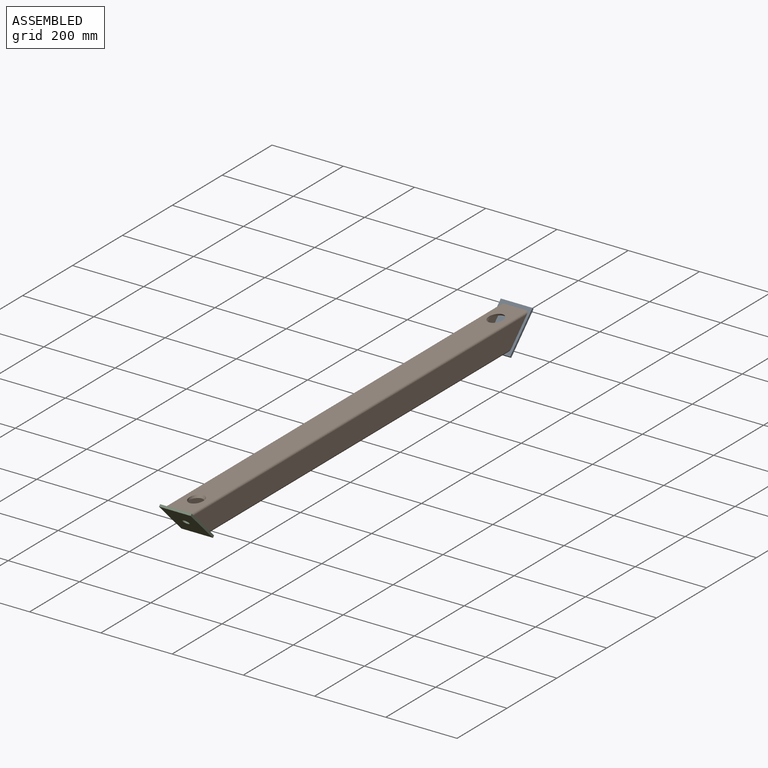
[diagram: assembled view]
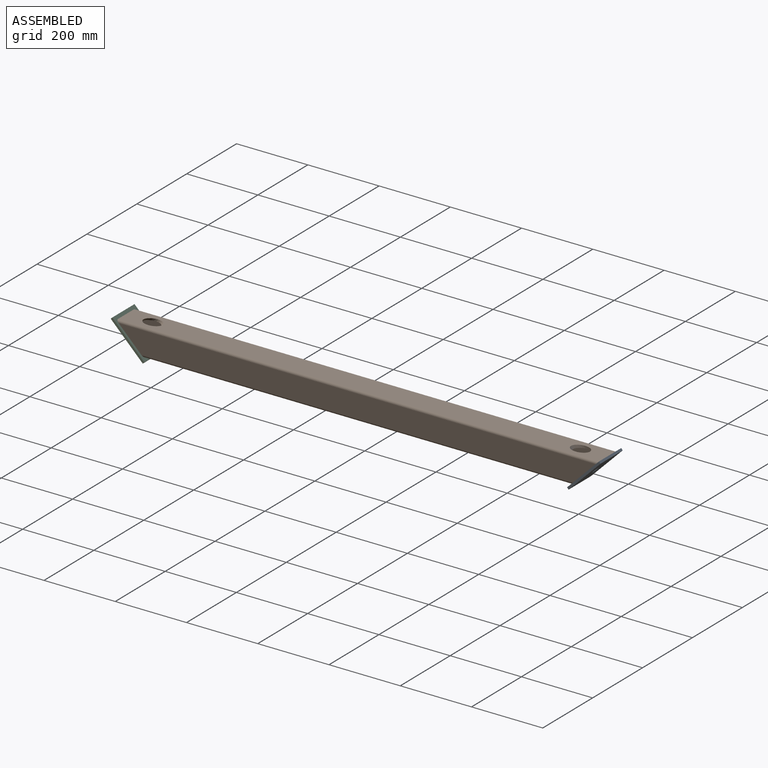
[diagram: assembled view, second angle]
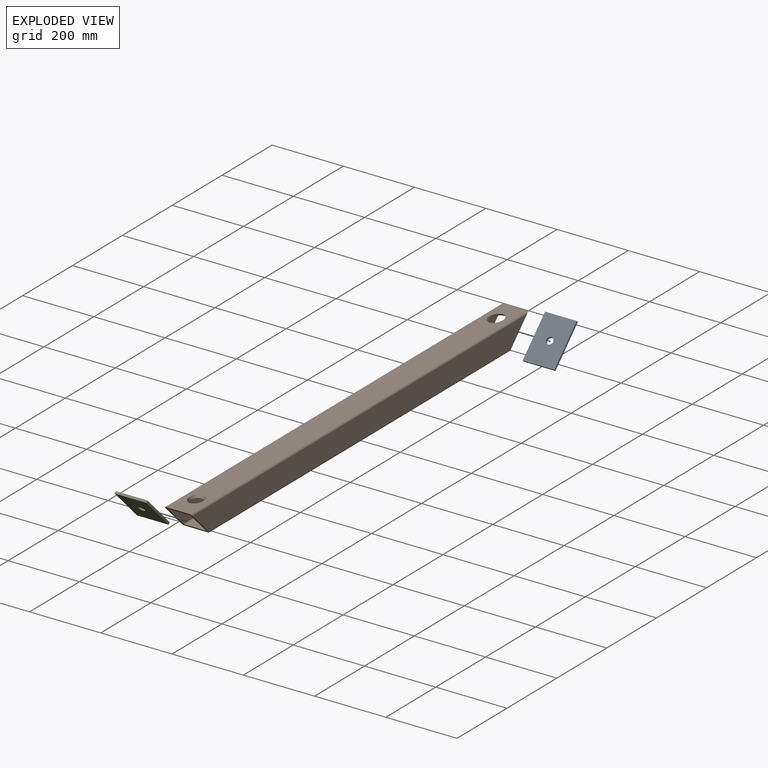
[diagram: exploded view]
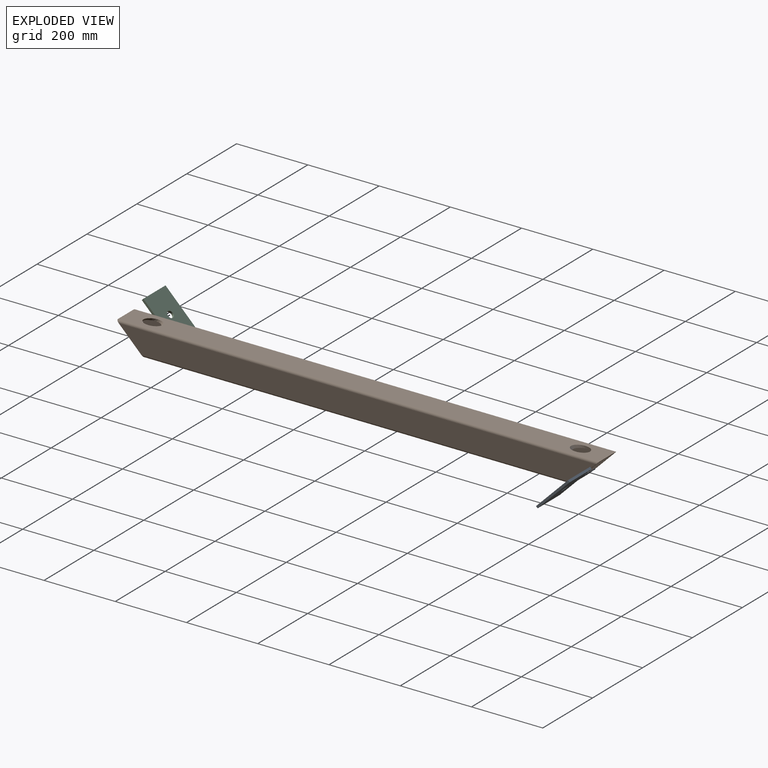
[diagram: exploded view, second angle]
ASSEMBLY  parts=3 mates=6
PART A: 7 faces, bbox 88.9x6.4x127 mm
  f0: plane 88.9x6.35mm, normal (0,0,1), area 564.5mm2, adj f1,f3,f4,f5
  f1: plane 127x6.35mm, normal (-1,0,0), area 806.5mm2, adj f0,f2,f4,f5
  f2: plane 88.9x6.35mm, normal (0,0,-1), area 564.5mm2, adj f1,f3,f4,f5
  f3: plane 127x6.35mm, normal (1,0,0), area 806.5mm2, adj f0,f2,f4,f5
  f4: plane 127x88.9mm, normal (0,-1,0), area 11005.3mm2, adj f0,f1,f2,f3,f6
  f5: plane 127x88.9mm, normal (0,1,0), area 11005.3mm2, adj f0,f1,f2,f3,f6
  f6: cylinder r=9.53mm len=19.05mm, axis (0,-1,0), area 380mm2, adj f4,f5
PART B: 16 faces, bbox 76.2x1352.5x103.3 mm
  f0: plane 1352.45x63.5mm, normal (0,0,1), area 82656.1mm2, adj f3,f6,f12,f13,f14,f15
  f1: plane 1200.05x63.5mm, normal (0,0,-1), area 76203.4mm2, adj f4,f5,f12,f13
  f2: plane 1339.75x63.5mm, normal (1,0,0), area 81042.1mm2, adj f5,f6,f12,f13
  f3: cylinder r=6.35mm len=1352.45mm, axis (0,-1,0), area 13444.1mm2, adj f0,f11,f12,f13
  f4: cylinder r=6.35mm len=1212.75mm, axis (0,1,0), area 12016mm2, adj f1,f11,f12,f13
  f5: cylinder r=6.35mm len=1212.75mm, axis (0,-1,0), area 12016mm2, adj f1,f2,f12,f13
  f6: cylinder r=6.35mm len=1352.45mm, axis (0,1,0), area 13444.1mm2, adj f0,f2,f12,f13
  f7: plane 1339.75x63.5mm, normal (0,0,-1), area 81849.7mm2, adj f8,f10,f12,f13,f14,f15
  f8: plane 1339.75x63.5mm, normal (1,0,0), area 81042.1mm2, adj f7,f9,f12,f13
  f9: plane 1212.75x63.5mm, normal (0,0,1), area 77009.9mm2, adj f8,f10,f12,f13
  f10: plane 1339.75x63.5mm, normal (-1,0,0), area 81042.1mm2, adj f7,f9,f12,f13
  f11: plane 1339.75x63.5mm, normal (-1,0,0), area 81042.1mm2, adj f3,f4,f12,f13
  f12: plane 76.2x76.2mm, normal (0,-0.71,-0.71), area 2460.1mm2, adj f0,f1,f2,f3,f4,f5,f6,f7
  f13: plane 76.2x76.2mm, normal (0,0.71,-0.71), area 2460.1mm2, adj f0,f1,f2,f3,f4,f5,f6,f7
  f14: cylinder r=19.05mm len=60.42mm, axis (0,-0.71,-0.71), area 1074.9mm2, adj f0,f7
  f15: cylinder r=19.05mm len=60.42mm, axis (0,0.71,-0.71), area 1074.9mm2, adj f0,f7
PART C: same geometry as A
PLACE A rot(axis=(-1,0,0),45deg) t=(-104.24,575.46,-14.95)mm
PLACE B t=(-104.24,-61.59,-10.46)mm fixed
PLACE C rot(axis=(-1,0,0),135deg) t=(-104.24,-709.77,-14.95)mm
MATE parallel B.f2 <-> C.f3  axis (1,0,0) through (-66.14,-67.16,-9.93)mm
MATE planar C.f4 <-> B.f14  axis (0,0.71,0.71) through (-59.79,-750.18,34.44)mm
MATE parallel B.f2 <-> A.f3  axis (1,0,0) through (-66.14,-67.16,-9.93)mm
MATE cylindrical C.f6 <-> B.f14  axis (0,0.71,0.71) through (-104.24,-707.53,-12.7)mm
MATE cylindrical A.f6 <-> B.f15  axis (0,-0.71,0.71) through (-104.24,573.22,-12.7)mm
MATE planar A.f6 <-> B.f15  axis (0,-0.71,0.71) through (-104.24,570.97,-10.46)mm
